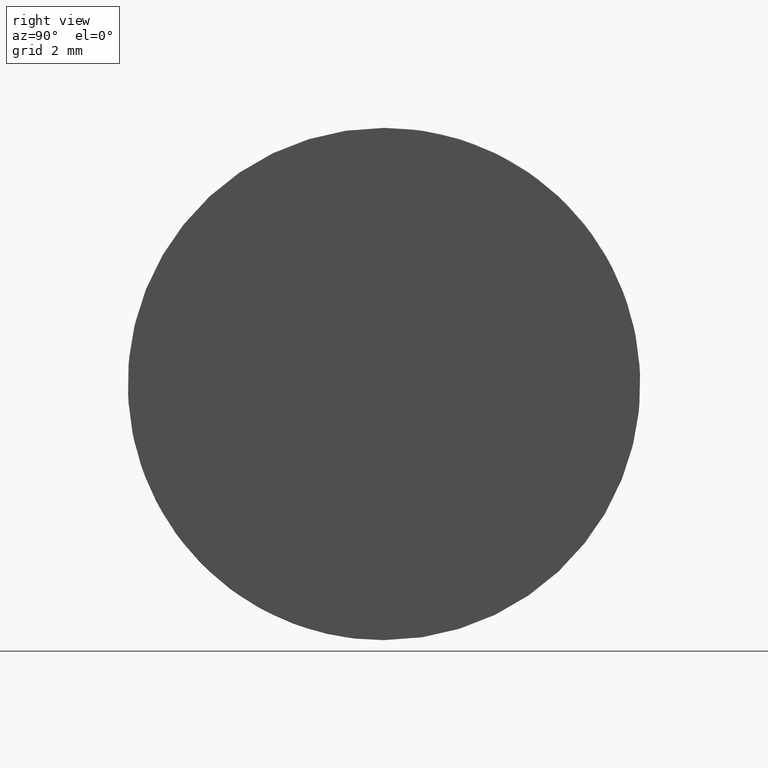
[diagram: clean part render]
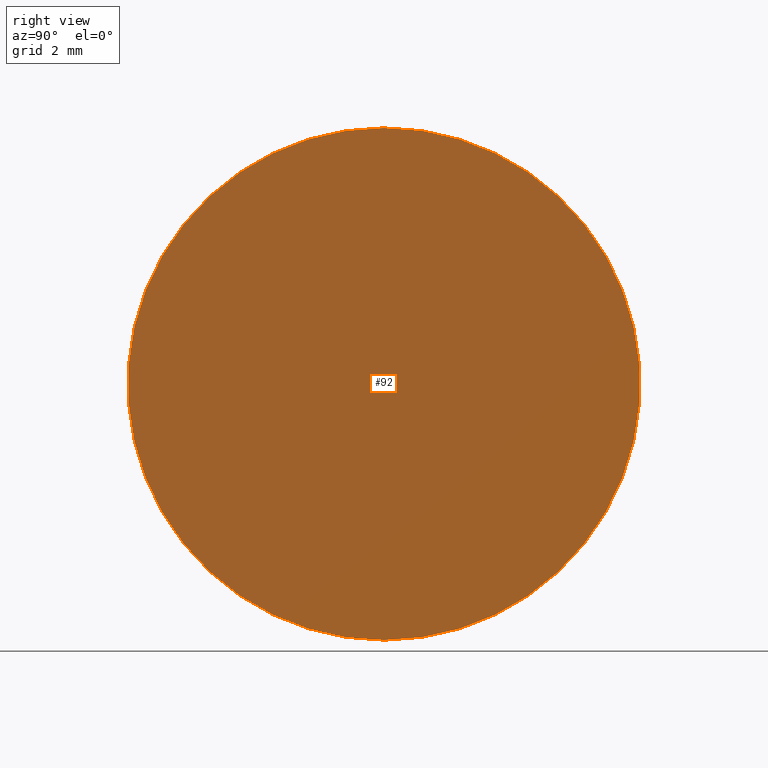
[diagram: same view with one face highlighted and labeled with its STEP entity id]
A machine part, right view. The second image highlights one B-rep face of the part: STEP entity #92.
In plain terms, the highlighted planar face has unit normal (1, 0, -0).
Its self-contained STEP definition (entity closure, byte-faithful):
#1 = EDGE_LOOP ( 'NONE', ( #38, #18 ) ) ;
#2 = EDGE_CURVE ( 'NONE', #129, #9, #182, .T. ) ;
#5 = DIRECTION ( 'NONE',  ( 0.0000000000000000000, 0.0000000000000000000, -1.000000000000000000 ) ) ;
#9 = VERTEX_POINT ( 'NONE', #207 ) ;
#14 = AXIS2_PLACEMENT_3D ( 'NONE', #77, #193, #132 ) ;
#18 = ORIENTED_EDGE ( 'NONE', *, *, #113, .T. ) ;
#29 = CIRCLE ( 'NONE', #14, 6.250000000000000000 ) ;
#38 = ORIENTED_EDGE ( 'NONE', *, *, #2, .T. ) ;
#55 = CARTESIAN_POINT ( 'NONE',  ( -31.92479566514873900, 12.50000000000000000, -6.250000000000001800 ) ) ;
#72 = PLANE ( 'NONE',  #133 ) ;
#77 = CARTESIAN_POINT ( 'NONE',  ( -31.92479566514873200, 6.250000000000000000, 1.251765117402033000E-014 ) ) ;
#88 = DIRECTION ( 'NONE',  ( 1.000000000000000000, 0.0000000000000000000, -5.551115123125781700E-016 ) ) ;
#92 = ADVANCED_FACE ( 'NONE', ( #136 ), #72, .T. ) ;
#113 = EDGE_CURVE ( 'NONE', #9, #129, #29, .T. ) ;
#116 = CARTESIAN_POINT ( 'NONE',  ( -31.92479566514873200, 6.250000000000000000, -6.249999999999988500 ) ) ;
#129 = VERTEX_POINT ( 'NONE', #116 ) ;
#132 = DIRECTION ( 'NONE',  ( 0.0000000000000000000, 0.0000000000000000000, -1.000000000000000000 ) ) ;
#133 = AXIS2_PLACEMENT_3D ( 'NONE', #55, #88, #145 ) ;
#136 = FACE_OUTER_BOUND ( 'NONE', #1, .T. ) ;
#145 = DIRECTION ( 'NONE',  ( -5.551115123125781700E-016, 0.0000000000000000000, -1.000000000000000000 ) ) ;
#148 = CARTESIAN_POINT ( 'NONE',  ( -31.92479566514873200, 6.250000000000000000, 1.251765117402033000E-014 ) ) ;
#152 = DIRECTION ( 'NONE',  ( 1.000000000000000000, 0.0000000000000000000, -4.995092817331920300E-016 ) ) ;
#182 = CIRCLE ( 'NONE', #199, 6.250000000000000000 ) ;
#193 = DIRECTION ( 'NONE',  ( 1.000000000000000000, 0.0000000000000000000, -4.995092817331920300E-016 ) ) ;
#199 = AXIS2_PLACEMENT_3D ( 'NONE', #148, #152, #5 ) ;
#207 = CARTESIAN_POINT ( 'NONE',  ( -31.92479566514873200, 6.250000000000000900, 6.250000000000012400 ) ) ;